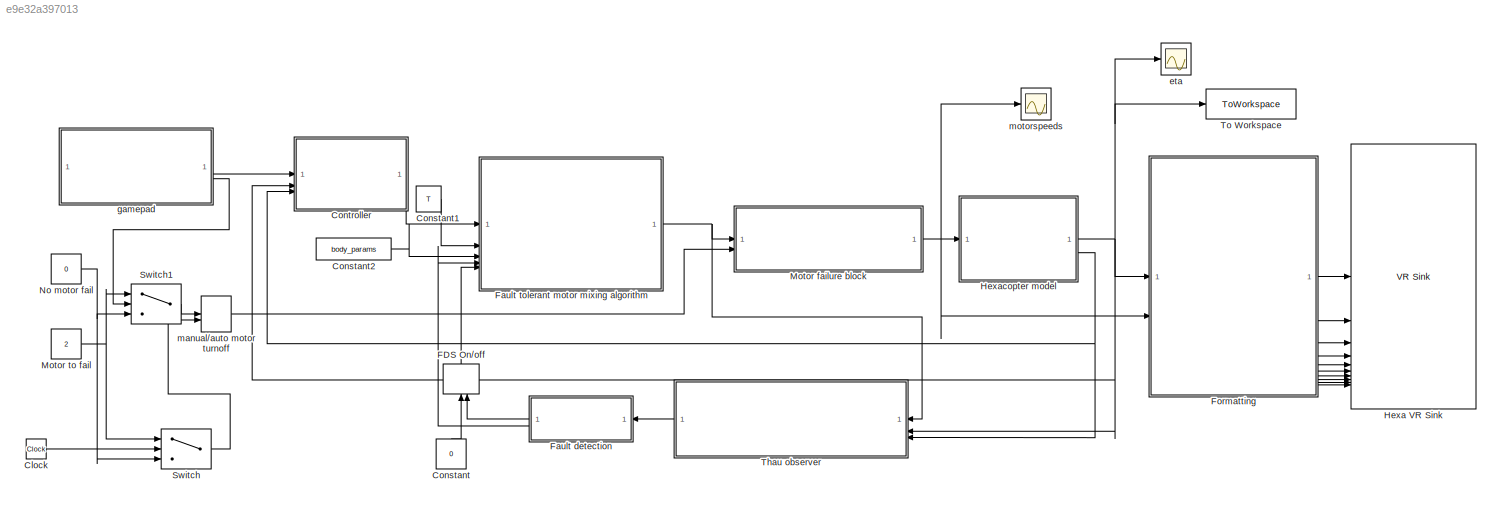
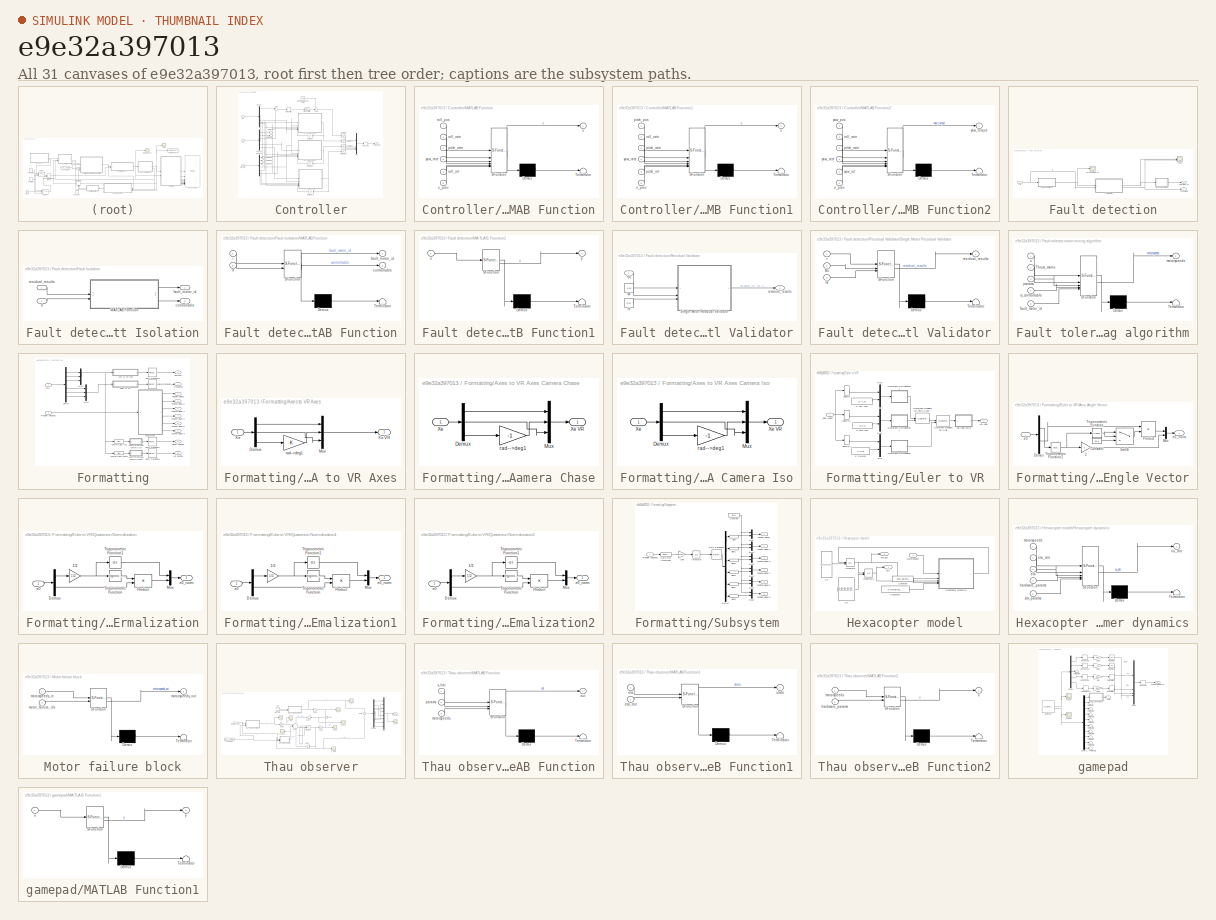
[diagram: thumbnail index - all 31 canvases of the model, root first then tree order]
MODEL slx_e9e32a397013
KIND model
CONFIG AbsTol = auto
CONFIG EnableMultiTasking = off
CONFIG FixedStep = 0.005
CONFIG MaxStep = auto
CONFIG MinStep = auto
CONFIG RelTol = 1e-3
CONFIG SampleTimeConstraint = Unconstrained
CONFIG SolverName = ode3
CONFIG StartTime = 0.0
CONFIG StopTime = inf
BLOCK [Clock] Clock
  Decimation = 1
BLOCK [Constant] Constant
  NameLocation = right
  Value = 0
BLOCK [Constant] Constant1
  Value = T
BLOCK [Constant] Constant2
  Value = body_params
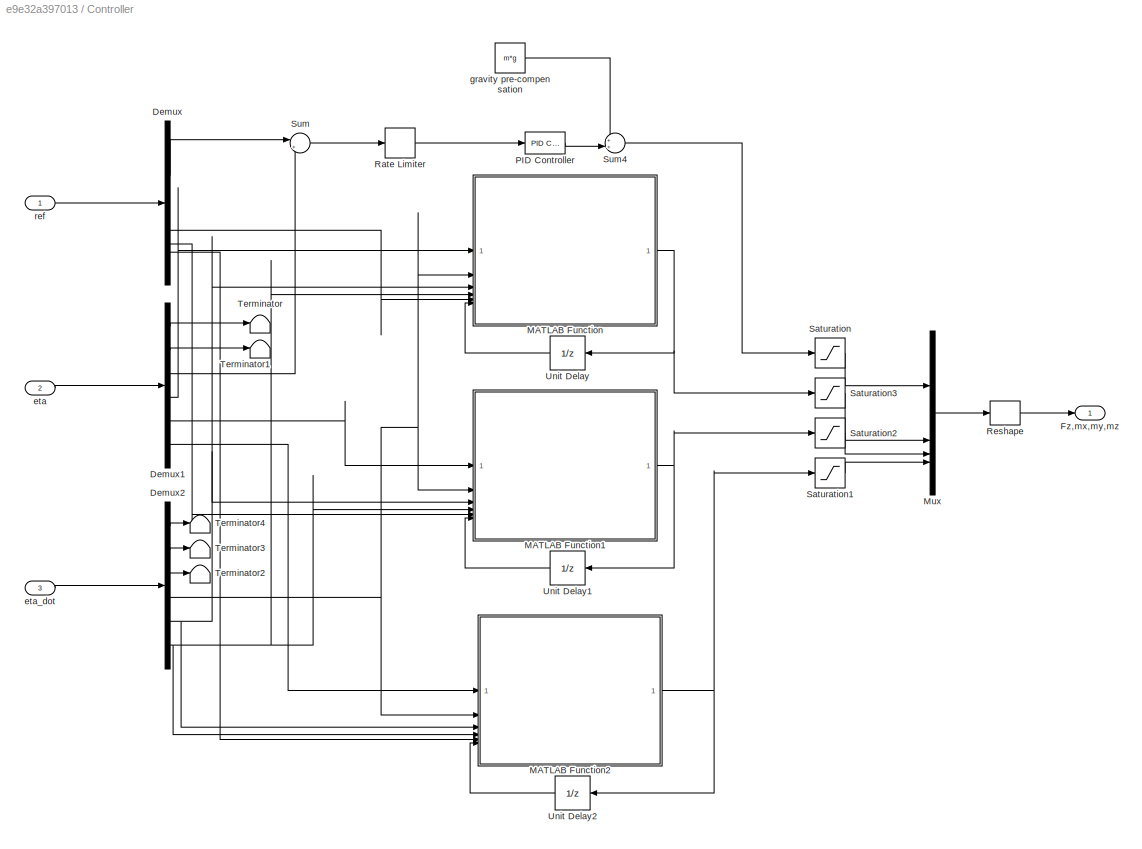
BLOCK [SubSystem] Controller
BLOCK [Demux] Controller/Demux
BLOCK [Demux] Controller/Demux1
  Outputs = 6
BLOCK [Demux] Controller/Demux2
  Outputs = 6
BLOCK [Outport] Controller/Fz,mx,my,mz
BLOCK [SubSystem] Controller/MATLAB Function
  ErrorFcn = Stateflow.Translate.translate
  PermitHierarchicalResolution = ExplicitOnly
  SFBlockType = MATLAB Function
  TreatAsAtomicUnit = on
BLOCK [Demux] Controller/MATLAB Function/ Demux 
  Outputs = 1
BLOCK [S-Function] Controller/MATLAB Function/ SFunction 
  EnableBusSupport = on
  FunctionName = sf_sfun
  PortCounts = [6 2]
  SFcnIsStateOwnerBlock = off
  SFunctionDeploymentMode = off
  Tag = Stateflow S-Function 7
BLOCK [Terminator] Controller/MATLAB Function/ Terminator 
BLOCK [Inport] Controller/MATLAB Function/pitch_rate
  Port = 3
BLOCK [Inport] Controller/MATLAB Function/roll_pos
BLOCK [Inport] Controller/MATLAB Function/roll_rate
  Port = 2
BLOCK [Inport] Controller/MATLAB Function/roll_ref
  Port = 5
BLOCK [Outport] Controller/MATLAB Function/u
BLOCK [Inport] Controller/MATLAB Function/u_prev
  Port = 6
BLOCK [Inport] Controller/MATLAB Function/yaw_rate
  Port = 4
BLOCK [SubSystem] Controller/MATLAB Function1
  ErrorFcn = Stateflow.Translate.translate
  PermitHierarchicalResolution = ExplicitOnly
  SFBlockType = MATLAB Function
  TreatAsAtomicUnit = on
BLOCK [Demux] Controller/MATLAB Function1/ Demux 
  Outputs = 1
BLOCK [S-Function] Controller/MATLAB Function1/ SFunction 
  EnableBusSupport = on
  FunctionName = sf_sfun
  PortCounts = [6 2]
  SFcnIsStateOwnerBlock = off
  SFunctionDeploymentMode = off
  Tag = Stateflow S-Function 10
BLOCK [Terminator] Controller/MATLAB Function1/ Terminator 
BLOCK [Inport] Controller/MATLAB Function1/pitch_pos
BLOCK [Inport] Controller/MATLAB Function1/pitch_rate
  Port = 3
BLOCK [Inport] Controller/MATLAB Function1/pitch_ref
  Port = 5
BLOCK [Inport] Controller/MATLAB Function1/roll_rate
  Port = 2
BLOCK [Outport] Controller/MATLAB Function1/u
BLOCK [Inport] Controller/MATLAB Function1/u_prev
  Port = 6
BLOCK [Inport] Controller/MATLAB Function1/yaw_rate
  Port = 4
BLOCK [SubSystem] Controller/MATLAB Function2
  ErrorFcn = Stateflow.Translate.translate
  PermitHierarchicalResolution = ExplicitOnly
  SFBlockType = MATLAB Function
  TreatAsAtomicUnit = on
BLOCK [Demux] Controller/MATLAB Function2/ Demux 
  Outputs = 1
BLOCK [S-Function] Controller/MATLAB Function2/ SFunction 
  EnableBusSupport = on
  FunctionName = sf_sfun
  PortCounts = [6 2]
  SFcnIsStateOwnerBlock = off
  SFunctionDeploymentMode = off
  Tag = Stateflow S-Function 12
BLOCK [Terminator] Controller/MATLAB Function2/ Terminator 
BLOCK [Inport] Controller/MATLAB Function2/pitch_rate
  Port = 3
BLOCK [Inport] Controller/MATLAB Function2/roll_rate
  Port = 2
BLOCK [Inport] Controller/MATLAB Function2/u_prev
  Port = 6
BLOCK [Inport] Controller/MATLAB Function2/yaw_pos
BLOCK [Inport] Controller/MATLAB Function2/yaw_rate
  Port = 4
BLOCK [Inport] Controller/MATLAB Function2/yaw_ref
  Port = 5
BLOCK [Outport] Controller/MATLAB Function2/yaw_torque
BLOCK [Mux] Controller/Mux
  DisplayOption = bar
BLOCK [Reference] Controller/PID Controller  REF=slpidlib/PID Controller
  LibrarySourceBlock = simulink/Continuous/PID Controller
  SourceBlock = slpidlib/PID Controller
  SourceType = PID 1dof
BLOCK [RateLimiter] Controller/Rate Limiter
  Commented = through
  FallingSlewLimit = -0.5
  RisingSlewLimit = 0.5
  SampleTimeMode = inherited
BLOCK [Reshape] Controller/Reshape
  OutputDimensionality = Column vector (2-D)
BLOCK [Saturate] Controller/Saturation
  LowerLimit = 0
  UpperLimit = 30
BLOCK [Saturate] Controller/Saturation1
  LowerLimit = -5
  UpperLimit = 5
BLOCK [Saturate] Controller/Saturation2
  LowerLimit = -0.2
  UpperLimit = 0.2
BLOCK [Saturate] Controller/Saturation3
  LowerLimit = -0.2
  UpperLimit = 0.2
BLOCK [Sum] Controller/Sum
  Inputs = |+-
BLOCK [Sum] Controller/Sum4
  Inputs = ++|
BLOCK [Terminator] Controller/Terminator
BLOCK [Terminator] Controller/Terminator1
BLOCK [Terminator] Controller/Terminator2
BLOCK [Terminator] Controller/Terminator3
BLOCK [Terminator] Controller/Terminator4
BLOCK [UnitDelay] Controller/Unit Delay
  HasFrameUpgradeWarning = on
  NameLocation = top
  SampleTime = -1
BLOCK [UnitDelay] Controller/Unit Delay1
  HasFrameUpgradeWarning = on
  NameLocation = top
  SampleTime = -1
BLOCK [UnitDelay] Controller/Unit Delay2
  HasFrameUpgradeWarning = on
  NameLocation = top
  SampleTime = -1
BLOCK [Inport] Controller/eta
  Port = 2
BLOCK [Inport] Controller/eta_dot
  Port = 3
BLOCK [Constant] Controller/gravity pre-compensation
  Value = m*g
BLOCK [Inport] Controller/ref
BLOCK [ManualSwitch] FDS On//off
  NameLocation = right
BLOCK [SubSystem] Fault detection
  NameLocation = top
BLOCK [SubSystem] Fault detection/Fault Isolation
BLOCK [SubSystem] Fault detection/Fault Isolation/MATLAB Function
  ErrorFcn = Stateflow.Translate.translate
  PermitHierarchicalResolution = ExplicitOnly
  SFBlockType = MATLAB Function
  TreatAsAtomicUnit = on
BLOCK [Demux] Fault detection/Fault Isolation/MATLAB Function/ Demux 
  Outputs = 1
BLOCK [S-Function] Fault detection/Fault Isolation/MATLAB Function/ SFunction 
  EnableBusSupport = on
  FunctionName = sf_sfun
  PortCounts = [2 3]
  SFcnIsStateOwnerBlock = off
  SFunctionDeploymentMode = off
  Tag = Stateflow S-Function 9
BLOCK [Terminator] Fault detection/Fault Isolation/MATLAB Function/ Terminator 
BLOCK [Outport] Fault detection/Fault Isolation/MATLAB Function/controllable
  Port = 2
BLOCK [Outport] Fault detection/Fault Isolation/MATLAB Function/fault_motor_id
BLOCK [Inport] Fault detection/Fault Isolation/MATLAB Function/r
BLOCK [Inport] Fault detection/Fault Isolation/MATLAB Function/rt
  Port = 2
BLOCK [Outport] Fault detection/Fault Isolation/controllable
  Port = 2
BLOCK [Outport] Fault detection/Fault Isolation/fault_motor_id
BLOCK [Inport] Fault detection/Fault Isolation/residual_results
BLOCK [Inport] Fault detection/Fault Isolation/rt
  Port = 2
BLOCK [Scope] Fault detection/Faults
  Floating = off
  NumInputPorts = 2
  ScopeSpecificationString = Simulink.scopes.TimeScopeBlockCfg('CurrentConfiguration', extmgr.ConfigurationSet(extmgr.Configuration('Core','General UI',true),extmgr.Configuration('Core','Source UI',true),extmgr.Configuration('Sources','WiredSimulink',true,'DataLoggingVariableName','ScopeData1'),extmgr.Configuration('Visuals','Time Domain',true,'SerializedDisplays',{struct('MinYLimReal','-1.25','MaxYLimReal','1.25','YLabelReal...<+1525ch>
BLOCK [SubSystem] Fault detection/MATLAB Function1
  ErrorFcn = Stateflow.Translate.translate
  PermitHierarchicalResolution = ExplicitOnly
  SFBlockType = MATLAB Function
  TreatAsAtomicUnit = on
BLOCK [Demux] Fault detection/MATLAB Function1/ Demux 
  Outputs = 1
BLOCK [S-Function] Fault detection/MATLAB Function1/ SFunction 
  EnableBusSupport = on
  FunctionName = sf_sfun
  PortCounts = [1 2]
  SFcnIsStateOwnerBlock = off
  SFunctionDeploymentMode = off
  Tag = Stateflow S-Function 13
BLOCK [Terminator] Fault detection/MATLAB Function1/ Terminator 
BLOCK [Inport] Fault detection/MATLAB Function1/u
BLOCK [Outport] Fault detection/MATLAB Function1/y
BLOCK [SubSystem] Fault detection/Residual Validator
BLOCK [Constant] Fault detection/Residual Validator/Hi
  Value = 0.03
BLOCK [Constant] Fault detection/Residual Validator/Mi
  Value = -0.03
BLOCK [SubSystem] Fault detection/Residual Validator/Single Motor Residual Validator
  ErrorFcn = Stateflow.Translate.translate
  PermitHierarchicalResolution = ExplicitOnly
  SFBlockType = MATLAB Function
  TreatAsAtomicUnit = on
BLOCK [Demux] Fault detection/Residual Validator/Single Motor Residual Validator/ Demux 
  Outputs = 1
BLOCK [S-Function] Fault detection/Residual Validator/Single Motor Residual Validator/ SFunction 
  EnableBusSupport = on
  FunctionName = sf_sfun
  PortCounts = [3 2]
  SFcnIsStateOwnerBlock = off
  SFunctionDeploymentMode = off
  Tag = Stateflow S-Function 11
BLOCK [Terminator] Fault detection/Residual Validator/Single Motor Residual Validator/ Terminator 
BLOCK [Inport] Fault detection/Residual Validator/Single Motor Residual Validator/Hi
  Port = 3
BLOCK [Inport] Fault detection/Residual Validator/Single Motor Residual Validator/Mi
  Port = 2
BLOCK [Inport] Fault detection/Residual Validator/Single Motor Residual Validator/r
BLOCK [Outport] Fault detection/Residual Validator/Single Motor Residual Validator/residual_results
BLOCK [Inport] Fault detection/Residual Validator/r(t)
BLOCK [Outport] Fault detection/Residual Validator/residual_results
BLOCK [Scope] Fault detection/Thresholded r(t)
  Floating = off
  NumInputPorts = 1
  ScopeSpecificationString = Simulink.scopes.TimeScopeBlockCfg('CurrentConfiguration', extmgr.ConfigurationSet(extmgr.Configuration('Core','General UI',true),extmgr.Configuration('Core','Source UI',true),extmgr.Configuration('Sources','WiredSimulink',true,'DataLoggingVariableName','ScopeData2'),extmgr.Configuration('Visuals','Time Domain',true,'SerializedDisplays',{struct('MinYLimReal','-1.25','MaxYLimReal','1.25','YLabelReal...<+1667ch>
BLOCK [Outport] Fault detection/controllable
  Port = 2
BLOCK [Outport] Fault detection/fault_motor_id
BLOCK [Inport] Fault detection/r(t)
BLOCK [SubSystem] Fault tolerant motor mixing algorithm
  ErrorFcn = Stateflow.Translate.translate
  PermitHierarchicalResolution = ExplicitOnly
  SFBlockType = MATLAB Function
  TreatAsAtomicUnit = on
BLOCK [Demux] Fault tolerant motor mixing algorithm/ Demux 
  Outputs = 1
BLOCK [S-Function] Fault tolerant motor mixing algorithm/ SFunction 
  EnableBusSupport = on
  FunctionName = sf_sfun
  PortCounts = [5 2]
  SFcnIsStateOwnerBlock = off
  SFunctionDeploymentMode = off
  Tag = Stateflow S-Function 6
BLOCK [Terminator] Fault tolerant motor mixing algorithm/ Terminator 
BLOCK [Inport] Fault tolerant motor mixing algorithm/Thrust_matrix
  Port = 2
BLOCK [Inport] Fault tolerant motor mixing algorithm/fault_motor_id
  Port = 5
BLOCK [Inport] Fault tolerant motor mixing algorithm/is_controllable
  Port = 4
BLOCK [Outport] Fault tolerant motor mixing algorithm/motorspeeds
BLOCK [Inport] Fault tolerant motor mixing algorithm/params
  Port = 3
BLOCK [Inport] Fault tolerant motor mixing algorithm/u
BLOCK [SubSystem] Formatting
BLOCK [SubSystem] Formatting/Axes to VR Axes
BLOCK [SubSystem] Formatting/Axes to VR Axes Camera Chase
BLOCK [Demux] Formatting/Axes to VR Axes Camera Chase/Demux
  DisplayOption = none
  Outputs = 3
BLOCK [Mux] Formatting/Axes to VR Axes Camera Chase/Mux
  DisplayOption = bar
  Inputs = 3
BLOCK [Inport] Formatting/Axes to VR Axes Camera Chase/Xe
BLOCK [Outport] Formatting/Axes to VR Axes Camera Chase/Xe VR
  VectorParamsAs1DForOutWhenUnconnected = off
BLOCK [Gain] Formatting/Axes to VR Axes Camera Chase/rad-->deg1
  Gain = -1
  NameLocation = top
  OutDataTypeStr = Inherit: Same as input
  ParamDataTypeStr = Inherit: Same as input
  SaturateOnIntegerOverflow = on
BLOCK [SubSystem] Formatting/Axes to VR Axes Camera Iso
BLOCK [Demux] Formatting/Axes to VR Axes Camera Iso/Demux
  DisplayOption = none
  Outputs = 3
BLOCK [Mux] Formatting/Axes to VR Axes Camera Iso/Mux
  DisplayOption = bar
  Inputs = 3
BLOCK [Inport] Formatting/Axes to VR Axes Camera Iso/Xe
BLOCK [Outport] Formatting/Axes to VR Axes Camera Iso/Xe VR
  VectorParamsAs1DForOutWhenUnconnected = off
BLOCK [Gain] Formatting/Axes to VR Axes Camera Iso/rad-->deg1
  Gain = -1
  NameLocation = top
  OutDataTypeStr = Inherit: Same as input
  ParamDataTypeStr = Inherit: Same as input
  SaturateOnIntegerOverflow = on
BLOCK [Demux] Formatting/Axes to VR Axes/Demux
  DisplayOption = none
  Outputs = 3
BLOCK [Mux] Formatting/Axes to VR Axes/Mux
  DisplayOption = bar
  Inputs = 3
BLOCK [Inport] Formatting/Axes to VR Axes/Xe
BLOCK [Outport] Formatting/Axes to VR Axes/Xe VR
  VectorParamsAs1DForOutWhenUnconnected = off
BLOCK [Gain] Formatting/Axes to VR Axes/rad-->deg1
  NameLocation = top
  OutDataTypeStr = Inherit: Same as input
  ParamDataTypeStr = Inherit: Same as input
  SaturateOnIntegerOverflow = on
BLOCK [Bias] Formatting/Camera bias Chase
  Bias = [-4 0 -.9558]'
  SaturateOnIntegerOverflow = off
BLOCK [Bias] Formatting/Camera bias Iso
  Bias = [0.9009 .99 -.6247]'
  SaturateOnIntegerOverflow = off
BLOCK [Demux] Formatting/Demux
  Outputs = 6
BLOCK [Inport] Formatting/Eta
BLOCK [SubSystem] Formatting/Euler to VR
BLOCK [Outport] Formatting/Euler to VR/Axis Angle
  VectorParamsAs1DForOutWhenUnconnected = off
BLOCK [SubSystem] Formatting/Euler to VR/Axis Angle Vector
BLOCK [Gain] Formatting/Euler to VR/Axis Angle Vector/2
  Gain = 2
  OutDataTypeStr = Inherit: Same as input
  ParamDataTypeStr = Inherit: Same as input
  SaturateOnIntegerOverflow = on
BLOCK [Constant] Formatting/Euler to VR/Axis Angle Vector/Constant
  Value = 1e-6
BLOCK [Demux] Formatting/Euler to VR/Axis Angle Vector/Demux
  DisplayOption = none
  Outputs = [1 3 ]
BLOCK [Mux] Formatting/Euler to VR/Axis Angle Vector/Mux
  DisplayOption = bar
  Inputs = 2
BLOCK [Product] Formatting/Euler to VR/Axis Angle Vector/Product
  InputSameDT = on
  Inputs = */
  OutDataTypeStr = Inherit: Same as first input
  SaturateOnIntegerOverflow = on
BLOCK [Switch] Formatting/Euler to VR/Axis Angle Vector/Switch
  Criteria = u2 ~= 0
  InputSameDT = off
  SaturateOnIntegerOverflow = off
BLOCK [Trigonometry] Formatting/Euler to VR/Axis Angle Vector/Trigonometric Function
BLOCK [Trigonometry] Formatting/Euler to VR/Axis Angle Vector/Trigonometric Function2
  Operator = acos
BLOCK [Inport] Formatting/Euler to VR/Axis Angle Vector/e0
BLOCK [Outport] Formatting/Euler to VR/Axis Angle Vector/e0_norm
  VectorParamsAs1DForOutWhenUnconnected = off
BLOCK [Inport] Formatting/Euler to VR/Euler Angles
BLOCK [Mux] Formatting/Euler to VR/Mux
  DisplayOption = bar
  Inputs = 2
BLOCK [Mux] Formatting/Euler to VR/Mux1
  DisplayOption = bar
  Inputs = 2
BLOCK [Mux] Formatting/Euler to VR/Mux2
  DisplayOption = bar
  Inputs = 2
BLOCK [Reference] Formatting/Euler to VR/Quaternion Multiplication (Pitch & Yaw)  REF=aerolibutil/Quaternion
Multiplication
  SourceBlock = aerolibutil/Quaternion\nMultiplication
  SourceType = Quaternion Multiplication
BLOCK [Reference] Formatting/Euler to VR/Quaternion Multiplication (Roll)  REF=aerolibutil/Quaternion
Multiplication
  SourceBlock = aerolibutil/Quaternion\nMultiplication
  SourceType = Quaternion Multiplication
BLOCK [SubSystem] Formatting/Euler to VR/Quaternion Normalization
BLOCK [Gain] Formatting/Euler to VR/Quaternion Normalization/1//2
  Gain = 1/2
  OutDataTypeStr = Inherit: Same as input
  ParamDataTypeStr = Inherit: Same as input
  SaturateOnIntegerOverflow = on
BLOCK [Demux] Formatting/Euler to VR/Quaternion Normalization/Demux
  DisplayOption = none
  Outputs = [1 3]
BLOCK [Mux] Formatting/Euler to VR/Quaternion Normalization/Mux
  DisplayOption = bar
  Inputs = 2
BLOCK [Product] Formatting/Euler to VR/Quaternion Normalization/Product
  InputSameDT = on
  OutDataTypeStr = Inherit: Same as first input
  SaturateOnIntegerOverflow = on
BLOCK [Trigonometry] Formatting/Euler to VR/Quaternion Normalization/Trigonometric Function
BLOCK [Trigonometry] Formatting/Euler to VR/Quaternion Normalization/Trigonometric Function1
  Operator = cos
BLOCK [Inport] Formatting/Euler to VR/Quaternion Normalization/e0
BLOCK [Outport] Formatting/Euler to VR/Quaternion Normalization/e0_norm
  VectorParamsAs1DForOutWhenUnconnected = off
BLOCK [SubSystem] Formatting/Euler to VR/Quaternion Normalization1
BLOCK [Gain] Formatting/Euler to VR/Quaternion Normalization1/1//2
  Gain = 1/2
  OutDataTypeStr = Inherit: Same as input
  ParamDataTypeStr = Inherit: Same as input
  SaturateOnIntegerOverflow = on
BLOCK [Demux] Formatting/Euler to VR/Quaternion Normalization1/Demux
  DisplayOption = none
  Outputs = [1 3]
BLOCK [Mux] Formatting/Euler to VR/Quaternion Normalization1/Mux
  DisplayOption = bar
  Inputs = 2
BLOCK [Product] Formatting/Euler to VR/Quaternion Normalization1/Product
  InputSameDT = on
  OutDataTypeStr = Inherit: Same as first input
  SaturateOnIntegerOverflow = on
BLOCK [Trigonometry] Formatting/Euler to VR/Quaternion Normalization1/Trigonometric Function
BLOCK [Trigonometry] Formatting/Euler to VR/Quaternion Normalization1/Trigonometric Function1
  Operator = cos
BLOCK [Inport] Formatting/Euler to VR/Quaternion Normalization1/e0
BLOCK [Outport] Formatting/Euler to VR/Quaternion Normalization1/e0_norm
  VectorParamsAs1DForOutWhenUnconnected = off
BLOCK [SubSystem] Formatting/Euler to VR/Quaternion Normalization2
BLOCK [Gain] Formatting/Euler to VR/Quaternion Normalization2/1//2
  Gain = 1/2
  OutDataTypeStr = Inherit: Same as input
  ParamDataTypeStr = Inherit: Same as input
  SaturateOnIntegerOverflow = on
BLOCK [Demux] Formatting/Euler to VR/Quaternion Normalization2/Demux
  DisplayOption = none
  Outputs = [1 3]
BLOCK [Mux] Formatting/Euler to VR/Quaternion Normalization2/Mux
  DisplayOption = bar
  Inputs = 2
BLOCK [Product] Formatting/Euler to VR/Quaternion Normalization2/Product
  InputSameDT = on
  OutDataTypeStr = Inherit: Same as first input
  SaturateOnIntegerOverflow = on
BLOCK [Trigonometry] Formatting/Euler to VR/Quaternion Normalization2/Trigonometric Function
BLOCK [Trigonometry] Formatting/Euler to VR/Quaternion Normalization2/Trigonometric Function1
  Operator = cos
BLOCK [Inport] Formatting/Euler to VR/Quaternion Normalization2/e0
BLOCK [Outport] Formatting/Euler to VR/Quaternion Normalization2/e0_norm
  VectorParamsAs1DForOutWhenUnconnected = off
BLOCK [Selector] Formatting/Euler to VR/Selector
  IndexOptions = Index vector (dialog)
  Indices = [3]
  InputPortWidth = 3
  OutputSizes = 1
BLOCK [Selector] Formatting/Euler to VR/Selector1
  IndexOptions = Index vector (dialog)
  Indices = [2]
  InputPortWidth = 3
  OutputSizes = 1
BLOCK [Selector] Formatting/Euler to VR/Selector2
  IndexOptions = Index vector (dialog)
  Indices = [1]
  InputPortWidth = 3
  OutputSizes = 1
BLOCK [Constant] Formatting/Euler to VR/Vr Pitch Axes
  NameLocation = top
  Value = [0 0 1]
BLOCK [Constant] Formatting/Euler to VR/Vr Roll Axes
  NameLocation = top
  Value = [1 0 0]
BLOCK [Constant] Formatting/Euler to VR/Vr Yaw Axes
  Value = [0 -1 0]
BLOCK [Outport] Formatting/Iso Position
  Port = 10
BLOCK [Mux] Formatting/Mux1
  DisplayOption = bar
  Inputs = 3
BLOCK [Mux] Formatting/Mux3
  DisplayOption = bar
  Inputs = 3
BLOCK [Outport] Formatting/NoRot Position
  Port = 9
BLOCK [Outport] Formatting/Position Blade 2
  Port = 6
BLOCK [Outport] Formatting/Position Blade 3
  Port = 7
BLOCK [Outport] Formatting/Position Blade 4
  Port = 4
BLOCK [Outport] Formatting/Position Blade 5
  Port = 8
BLOCK [Outport] Formatting/Position Blade 6
  Port = 5
BLOCK [Outport] Formatting/Position Blade1
  Port = 3
BLOCK [Inport] Formatting/Propeller velocities
  Port = 2
BLOCK [RateTransition] Formatting/Rate Transition
BLOCK [RateTransition] Formatting/Rate Transition1
BLOCK [RateTransition] Formatting/Rate Transition2
BLOCK [RateTransition] Formatting/Rate Transition3
BLOCK [Outport] Formatting/Rotation
  Port = 2
BLOCK [SubSystem] Formatting/Subsystem
BLOCK [Bias] Formatting/Subsystem/Bias
  Bias = .1
  SaturateOnIntegerOverflow = off
BLOCK [Bias] Formatting/Subsystem/Bias1
  Bias = -.3
  SaturateOnIntegerOverflow = off
BLOCK [Bias] Formatting/Subsystem/Bias2
  Bias = .5
  SaturateOnIntegerOverflow = off
BLOCK [Bias] Formatting/Subsystem/Bias3
  Bias = -.7
  SaturateOnIntegerOverflow = off
BLOCK [Bias] Formatting/Subsystem/Bias4
  Bias = .9
  SaturateOnIntegerOverflow = off
BLOCK [Bias] Formatting/Subsystem/Bias5
  Bias = -.11
  SaturateOnIntegerOverflow = off
BLOCK [Constant] Formatting/Subsystem/Constant
  Value = [0 1 0]
BLOCK [DataTypeConversion] Formatting/Subsystem/Data Type Conversion
  OutDataTypeStr = double
  RndMeth = Floor
  SaturateOnIntegerOverflow = off
BLOCK [Demux] Formatting/Subsystem/Demux
  Outputs = 6
BLOCK [Gain] Formatting/Subsystem/Gain
  Gain = 0.0138408
BLOCK [Integrator] Formatting/Subsystem/Integrator
  InitialCondition = [.1 ; .2 ;-.3 ;-.4;-.5;-.6]
  WrapState = on
  WrappedStateLowerValue = -2*pi
  WrappedStateUpperValue = 2*pi
BLOCK [Mux] Formatting/Subsystem/Mux
  DisplayOption = bar
  Inputs = 2
BLOCK [Mux] Formatting/Subsystem/Mux1
  DisplayOption = bar
  Inputs = 2
BLOCK [Mux] Formatting/Subsystem/Mux2
  DisplayOption = bar
  Inputs = 2
BLOCK [Mux] Formatting/Subsystem/Mux3
  DisplayOption = bar
  Inputs = 2
BLOCK [Mux] Formatting/Subsystem/Mux4
  DisplayOption = bar
  Inputs = 2
BLOCK [Mux] Formatting/Subsystem/Mux5
  DisplayOption = bar
  Inputs = 2
BLOCK [Outport] Formatting/Subsystem/Position Blade 2
  Port = 2
  VectorParamsAs1DForOutWhenUnconnected = off
BLOCK [Outport] Formatting/Subsystem/Position Blade 3
  Port = 3
  VectorParamsAs1DForOutWhenUnconnected = off
BLOCK [Outport] Formatting/Subsystem/Position Blade 4
  Port = 4
  VectorParamsAs1DForOutWhenUnconnected = off
BLOCK [Outport] Formatting/Subsystem/Position Blade 5
  Port = 5
  VectorParamsAs1DForOutWhenUnconnected = off
BLOCK [Outport] Formatting/Subsystem/Position Blade 6
  Port = 6
  VectorParamsAs1DForOutWhenUnconnected = off
BLOCK [Outport] Formatting/Subsystem/Position Blade1
  VectorParamsAs1DForOutWhenUnconnected = off
BLOCK [Inport] Formatting/Subsystem/Propeller velocities
BLOCK [RateTransition] Formatting/Subsystem/Rate Transition2
BLOCK [Outport] Formatting/Translation
BLOCK [Reference] Hexa VR Sink  REF=vrlib/VR Sink
  InstantiateOnLoad = on
  SourceBlock = vrlib/VR Sink
  SourceType = Virtual Reality Sink
BLOCK [SubSystem] Hexacopter model
BLOCK [Constant] Hexacopter model/Constant
  Value = body_params
BLOCK [Constant] Hexacopter model/Constant1
  Value = Simulation_params
BLOCK [SubSystem] Hexacopter model/Hexacopter dynamics
  ErrorFcn = Stateflow.Translate.translate
  PermitHierarchicalResolution = ExplicitOnly
  SFBlockType = MATLAB Function
  TreatAsAtomicUnit = on
BLOCK [Demux] Hexacopter model/Hexacopter dynamics/ Demux 
  Outputs = 1
BLOCK [S-Function] Hexacopter model/Hexacopter dynamics/ SFunction 
  EnableBusSupport = on
  FunctionName = sf_sfun
  PortCounts = [5 2]
  SFcnIsStateOwnerBlock = off
  SFunctionDeploymentMode = off
  Tag = Stateflow S-Function 3
BLOCK [Terminator] Hexacopter model/Hexacopter dynamics/ Terminator 
BLOCK [Inport] Hexacopter model/Hexacopter dynamics/eta
  Port = 3
BLOCK [Inport] Hexacopter model/Hexacopter dynamics/eta_dot
  Port = 2
BLOCK [Inport] Hexacopter model/Hexacopter dynamics/hardware_params
  Port = 4
BLOCK [Inport] Hexacopter model/Hexacopter dynamics/motorspeeds
BLOCK [Outport] Hexacopter model/Hexacopter dynamics/nu_dot
BLOCK [Inport] Hexacopter model/Hexacopter dynamics/sim_params
  Port = 5
BLOCK [Integrator] Hexacopter model/Integrator
  InitialConditionSource = external
BLOCK [Integrator] Hexacopter model/Integrator1
  InitialConditionSource = external
BLOCK [Outport] Hexacopter model/eta
BLOCK [Outport] Hexacopter model/eta_dot
  Port = 2
BLOCK [Inport] Hexacopter model/motorspeeds
BLOCK [Constant] Hexacopter model/v_0
  Value = [0;0;0;0;0;0]
  VectorParams1D = off
BLOCK [Constant] Hexacopter model/x_0
  Value = [0;0;0;0;0;0]
  VectorParams1D = off
BLOCK [SubSystem] Motor failure block
  ErrorFcn = Stateflow.Translate.translate
  PermitHierarchicalResolution = ExplicitOnly
  SFBlockType = MATLAB Function
  TreatAsAtomicUnit = on
BLOCK [Demux] Motor failure block/ Demux 
  Outputs = 1
BLOCK [S-Function] Motor failure block/ SFunction 
  EnableBusSupport = on
  FunctionName = sf_sfun
  PortCounts = [2 2]
  SFcnIsStateOwnerBlock = off
  SFunctionDeploymentMode = off
  Tag = Stateflow S-Function 8
BLOCK [Terminator] Motor failure block/ Terminator 
BLOCK [Inport] Motor failure block/motor_failure_idx
  Port = 2
BLOCK [Inport] Motor failure block/motorspeeds_in
BLOCK [Outport] Motor failure block/motorspeeds_out
BLOCK [Constant] Motor to fail
  Value = 2
BLOCK [Constant] No motor fail
  Value = 0
BLOCK [Switch] Switch
  Criteria = u2 > Threshold
  InputSameDT = off
  SaturateOnIntegerOverflow = off
  Threshold = 10
BLOCK [Switch] Switch1
  InputSameDT = off
  SaturateOnIntegerOverflow = off
  Threshold = 1
BLOCK [SubSystem] Thau observer
  NameLocation = top
BLOCK [Scope] Thau observer/Bu
  Floating = off
  NumInputPorts = 1
  ScopeSpecificationString = Simulink.scopes.TimeScopeBlockCfg('CurrentConfiguration', extmgr.ConfigurationSet(extmgr.Configuration('Core','General UI',true),extmgr.Configuration('Core','Source UI',true),extmgr.Configuration('Sources','WiredSimulink',true,'DataLoggingVariableName','ScopeData2'),extmgr.Configuration('Visuals','Time Domain',true,'SerializedDisplays',{struct('MinYLimReal','-40.13004','MaxYLimReal','16.01252','YL...<+1685ch>
BLOCK [Constant] Thau observer/Constant1
  Value = body_params
BLOCK [Demux] Thau observer/Demux
  Outputs = 8
BLOCK [Gain] Thau observer/Gain
  Gain = C
  Multiplication = Matrix(K*u)
BLOCK [Gain] Thau observer/Gain1
  Gain = A
  Multiplication = Matrix(K*u)
  NameLocation = top
BLOCK [Gain] Thau observer/Gain2
  Gain = B
  Multiplication = Matrix(K*u)
BLOCK [Gain] Thau observer/Gain3
  Gain = K
  Multiplication = Matrix(K*u)
  NameLocation = top
BLOCK [Gain] Thau observer/Gain4
  Gain = C
  Multiplication = Matrix(K*u)
BLOCK [Integrator] Thau observer/Integrator
  InitialConditionSource = external
BLOCK [SubSystem] Thau observer/MATLAB Function
  ErrorFcn = Stateflow.Translate.translate
  PermitHierarchicalResolution = ExplicitOnly
  SFBlockType = MATLAB Function
  TreatAsAtomicUnit = on
BLOCK [Demux] Thau observer/MATLAB Function/ Demux 
  Outputs = 1
BLOCK [S-Function] Thau observer/MATLAB Function/ SFunction 
  EnableBusSupport = on
  FunctionName = sf_sfun
  PortCounts = [3 2]
  SFcnIsStateOwnerBlock = off
  SFunctionDeploymentMode = off
  Tag = Stateflow S-Function 5
BLOCK [Terminator] Thau observer/MATLAB Function/ Terminator 
BLOCK [Inport] Thau observer/MATLAB Function/motorspeeds
  Port = 3
BLOCK [Outport] Thau observer/MATLAB Function/out
BLOCK [Inport] Thau observer/MATLAB Function/params
  Port = 2
BLOCK [Inport] Thau observer/MATLAB Function/x_hat
BLOCK [SubSystem] Thau observer/MATLAB Function1
  ErrorFcn = Stateflow.Translate.translate
  PermitHierarchicalResolution = ExplicitOnly
  SFBlockType = MATLAB Function
  TreatAsAtomicUnit = on
BLOCK [Demux] Thau observer/MATLAB Function1/ Demux 
  Outputs = 1
BLOCK [S-Function] Thau observer/MATLAB Function1/ SFunction 
  EnableBusSupport = on
  FunctionName = sf_sfun
  PortCounts = [2 2]
  SFcnIsStateOwnerBlock = off
  SFunctionDeploymentMode = off
  Tag = Stateflow S-Function 1
BLOCK [Terminator] Thau observer/MATLAB Function1/ Terminator 
BLOCK [Inport] Thau observer/MATLAB Function1/eta
BLOCK [Inport] Thau observer/MATLAB Function1/eta_dot
  Port = 2
BLOCK [Outport] Thau observer/MATLAB Function1/state
BLOCK [SubSystem] Thau observer/MATLAB Function2
  ErrorFcn = Stateflow.Translate.translate
  PermitHierarchicalResolution = ExplicitOnly
  SFBlockType = MATLAB Function
  TreatAsAtomicUnit = on
BLOCK [Demux] Thau observer/MATLAB Function2/ Demux 
  Outputs = 1
BLOCK [S-Function] Thau observer/MATLAB Function2/ SFunction 
  EnableBusSupport = on
  FunctionName = sf_sfun
  PortCounts = [2 2]
  SFcnIsStateOwnerBlock = off
  SFunctionDeploymentMode = off
  Tag = Stateflow S-Function 4
BLOCK [Terminator] Thau observer/MATLAB Function2/ Terminator 
BLOCK [Inport] Thau observer/MATLAB Function2/hardware_params
  Port = 2
BLOCK [Inport] Thau observer/MATLAB Function2/motorspeeds
BLOCK [Outport] Thau observer/MATLAB Function2/u
BLOCK [Mux] Thau observer/Mux
  DisplayOption = bar
  Inputs = 8
BLOCK [Scope] Thau observer/Scope
  Floating = off
  NumInputPorts = 1
  ScopeSpecificationString = Simulink.scopes.TimeScopeBlockCfg('CurrentConfiguration', extmgr.ConfigurationSet(extmgr.Configuration('Core','General UI',true),extmgr.Configuration('Core','Source UI',true),extmgr.Configuration('Sources','WiredSimulink',true,'DataLoggingVariableName','ScopeData3'),extmgr.Configuration('Visuals','Time Domain',true,'SerializedDisplays',{struct('MinYLimReal','-0.00131','MaxYLimReal','0.00618','YLab...<+1506ch>
BLOCK [Scope] Thau observer/Scope2
  Floating = off
  NameLocation = top
  NumInputPorts = 1
  ScopeSpecificationString = Simulink.scopes.TimeScopeBlockCfg('CurrentConfiguration', extmgr.ConfigurationSet(extmgr.Configuration('Core','General UI',true),extmgr.Configuration('Core','Source UI',true),extmgr.Configuration('Sources','WiredSimulink',true,'DataLoggingVariableName','ScopeData1'),extmgr.Configuration('Visuals','Time Domain',true,'SerializedDisplays',{struct('MinYLimReal','-11.08749','MaxYLimReal','1.58739','YLa...<+1730ch>
BLOCK [Sum] Thau observer/Sum
  Inputs = +|-
  NameLocation = top
BLOCK [Sum] Thau observer/Sum1
  Inputs = +|+|+|+
BLOCK [Sum] Thau observer/Sum2
  Inputs = +|-
BLOCK [Inport] Thau observer/eta
  NameLocation = top
  Port = 2
BLOCK [Inport] Thau observer/eta_dot
  Port = 3
BLOCK [Inport] Thau observer/motorspeeds
BLOCK [Outport] Thau observer/residuals
BLOCK [Scope] Thau observer/rt
  Floating = off
  NumInputPorts = 1
  ScopeSpecificationString = Simulink.scopes.TimeScopeBlockCfg('CurrentConfiguration', extmgr.ConfigurationSet(extmgr.Configuration('Core','General UI',true),extmgr.Configuration('Core','Source UI',true),extmgr.Configuration('Sources','WiredSimulink',true,'DataLoggingVariableName','ScopeData2'),extmgr.Configuration('Visuals','Time Domain',true,'SerializedDisplays',{struct('MinYLimReal','-3033.32076','MaxYLimReal','469.27391',...<+1490ch>
BLOCK [Scope] Thau observer/u
  Floating = off
  NumInputPorts = 1
  ScopeSpecificationString = Simulink.scopes.TimeScopeBlockCfg('CurrentConfiguration', extmgr.ConfigurationSet(extmgr.Configuration('Core','General UI',true),extmgr.Configuration('Core','Source UI',true),extmgr.Configuration('Sources','WiredSimulink',true,'DataLoggingVariableName','ScopeData1'),extmgr.Configuration('Visuals','Time Domain',true,'SerializedDisplays',{struct('MinYLimReal','-3.24946','MaxYLimReal','29.24513','YLa...<+1546ch>
BLOCK [Scope] Thau observer/x
  Floating = off
  NumInputPorts = 1
  ScopeSpecificationString = Simulink.scopes.TimeScopeBlockCfg('CurrentConfiguration', extmgr.ConfigurationSet(extmgr.Configuration('Core','General UI',true),extmgr.Configuration('Core','Source UI',true),extmgr.Configuration('Sources','WiredSimulink',true,'DataLoggingVariableName','ScopeData2'),extmgr.Configuration('Visuals','Time Domain',true,'SerializedDisplays',{struct('MinYLimReal','-2.20375','MaxYLimReal','11.68958','YLa...<+1642ch>
BLOCK [Constant] Thau observer/x_0
  Value = [0;0;0;0;0;0;0;0]
  VectorParams1D = off
BLOCK [Scope] Thau observer/x_hat
  Floating = off
  NumInputPorts = 1
  ScopeSpecificationString = Simulink.scopes.TimeScopeBlockCfg('CurrentConfiguration', extmgr.ConfigurationSet(extmgr.Configuration('Core','General UI',true),extmgr.Configuration('Core','Source UI',true),extmgr.Configuration('Sources','WiredSimulink',true,'DataLoggingVariableName','ScopeData1'),extmgr.Configuration('Visuals','Time Domain',true,'SerializedDisplays',{struct('MinYLimReal','-2.18057','MaxYLimReal','11.47559','YLa...<+1676ch>
BLOCK [Scope] Thau observer/y
  Floating = off
  NumInputPorts = 1
  ScopeSpecificationString = Simulink.scopes.TimeScopeBlockCfg('CurrentConfiguration', extmgr.ConfigurationSet(extmgr.Configuration('Core','General UI',true),extmgr.Configuration('Core','Source UI',true),extmgr.Configuration('Sources','WiredSimulink',true,'DataLoggingVariableName','ScopeData3'),extmgr.Configuration('Visuals','Time Domain',true,'SerializedDisplays',{struct('MinYLimReal','-0.00000000000000016','MaxYLimReal','0....<+1510ch>
BLOCK [Scope] Thau observer/y_hat
  Floating = off
  NumInputPorts = 1
  ScopeSpecificationString = Simulink.scopes.TimeScopeBlockCfg('CurrentConfiguration', extmgr.ConfigurationSet(extmgr.Configuration('Core','General UI',true),extmgr.Configuration('Core','Source UI',true),extmgr.Configuration('Sources','WiredSimulink',true,'DataLoggingVariableName','ScopeData4'),extmgr.Configuration('Visuals','Time Domain',true,'SerializedDisplays',{struct('MinYLimReal','-0.00618','MaxYLimReal','0.00131','YLab...<+1432ch>
BLOCK [ToWorkspace] To Workspace
  FixptAsFi = on
  MaxDataPoints = inf
  SampleTime = -1
  SaveFormat = Timeseries
  VariableName = simout
BLOCK [Scope] eta
  Floating = off
  NumInputPorts = 1
  ScopeSpecificationString = Simulink.scopes.TimeScopeBlockCfg('CurrentConfiguration', extmgr.ConfigurationSet(extmgr.Configuration('Core','General UI',true),extmgr.Configuration('Core','Source UI',true),extmgr.Configuration('Sources','WiredSimulink',true,'DataLoggingVariableName','ScopeData1'),extmgr.Configuration('Visuals','Time Domain',true,'SerializedDisplays',{struct('MinYLimReal','-2.61047','MaxYLimReal','23.49123','YLa...<+1695ch>
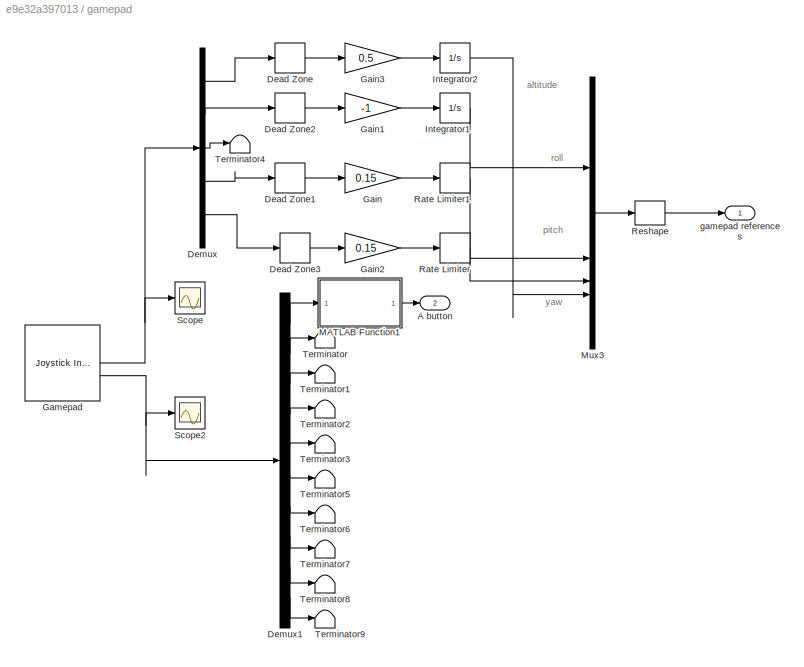
BLOCK [SubSystem] gamepad
BLOCK [Outport] gamepad/A button
  Port = 2
BLOCK [DeadZone] gamepad/Dead Zone
  LowerValue = -0.2
  UpperValue = 0.2
BLOCK [DeadZone] gamepad/Dead Zone1
  LowerValue = -0.2
  UpperValue = 0.2
BLOCK [DeadZone] gamepad/Dead Zone2
  LowerValue = -0.2
  UpperValue = 0.2
BLOCK [DeadZone] gamepad/Dead Zone3
  LowerValue = -0.2
  UpperValue = 0.2
BLOCK [Demux] gamepad/Demux
  Outputs = 5
BLOCK [Demux] gamepad/Demux1
  Outputs = 10
BLOCK [Gain] gamepad/Gain
  Gain = 0.15
BLOCK [Gain] gamepad/Gain1
  Gain = -1
BLOCK [Gain] gamepad/Gain2
  Gain = 0.15
BLOCK [Gain] gamepad/Gain3
  Gain = 0.5
BLOCK [Reference] gamepad/Gamepad  REF=vrlib/Joystick Input
  SourceBlock = vrlib/Joystick Input
  SourceType = Joystick Input
BLOCK [Integrator] gamepad/Integrator1
BLOCK [Integrator] gamepad/Integrator2
BLOCK [SubSystem] gamepad/MATLAB Function1
  ErrorFcn = Stateflow.Translate.translate
  PermitHierarchicalResolution = ExplicitOnly
  SFBlockType = MATLAB Function
  TreatAsAtomicUnit = on
BLOCK [Demux] gamepad/MATLAB Function1/ Demux 
  Outputs = 1
BLOCK [S-Function] gamepad/MATLAB Function1/ SFunction 
  EnableBusSupport = on
  FunctionName = sf_sfun
  PortCounts = [1 2]
  SFcnIsStateOwnerBlock = off
  SFunctionDeploymentMode = off
  Tag = Stateflow S-Function 2
BLOCK [Terminator] gamepad/MATLAB Function1/ Terminator 
BLOCK [Inport] gamepad/MATLAB Function1/u
BLOCK [Outport] gamepad/MATLAB Function1/y
BLOCK [Mux] gamepad/Mux3
  DisplayOption = bar
BLOCK [RateLimiter] gamepad/Rate Limiter
  FallingSlewLimit = -0.2
  RisingSlewLimit = 0.2
  SampleTimeMode = inherited
BLOCK [RateLimiter] gamepad/Rate Limiter1
  FallingSlewLimit = -0.2
  RisingSlewLimit = 0.2
  SampleTimeMode = inherited
BLOCK [Reshape] gamepad/Reshape
  OutputDimensionality = Column vector (2-D)
BLOCK [Scope] gamepad/Scope
  Floating = off
  NumInputPorts = 1
  ScopeSpecificationString = Simulink.scopes.TimeScopeBlockCfg('CurrentConfiguration', extmgr.ConfigurationSet(extmgr.Configuration('Core','General UI',true),extmgr.Configuration('Core','Source UI',true),extmgr.Configuration('Sources','WiredSimulink',true,'DataLoggingVariableName','ScopeData1'),extmgr.Configuration('Visuals','Time Domain',true,'SerializedDisplays',{struct('MinYLimReal','-1.25','MaxYLimReal','1.25','YLabelReal...<+1435ch>
BLOCK [Scope] gamepad/Scope2
  Floating = off
  NumInputPorts = 1
  ScopeSpecificationString = Simulink.scopes.TimeScopeBlockCfg('CurrentConfiguration', extmgr.ConfigurationSet(extmgr.Configuration('Core','General UI',true),extmgr.Configuration('Core','Source UI',true),extmgr.Configuration('Sources','WiredSimulink',true,'DataLoggingVariableName','ScopeData1'),extmgr.Configuration('Visuals','Time Domain',true,'SerializedDisplays',{struct('MinYLimReal','-1.00000','MaxYLimReal','1.00000','YLab...<+1496ch>
BLOCK [Terminator] gamepad/Terminator
BLOCK [Terminator] gamepad/Terminator1
BLOCK [Terminator] gamepad/Terminator2
BLOCK [Terminator] gamepad/Terminator3
BLOCK [Terminator] gamepad/Terminator4
BLOCK [Terminator] gamepad/Terminator5
BLOCK [Terminator] gamepad/Terminator6
BLOCK [Terminator] gamepad/Terminator7
BLOCK [Terminator] gamepad/Terminator8
BLOCK [Terminator] gamepad/Terminator9
BLOCK [Outport] gamepad/gamepad references
BLOCK [ManualSwitch] manual//auto motor turnoff
BLOCK [Scope] motorspeeds
  Floating = off
  NumInputPorts = 1
  ScopeSpecificationString = Simulink.scopes.TimeScopeBlockCfg('CurrentConfiguration', extmgr.ConfigurationSet(extmgr.Configuration('Core','General UI',true),extmgr.Configuration('Core','Source UI',true),extmgr.Configuration('Sources','WiredSimulink',true,'DataLoggingVariableName','ScopeData1'),extmgr.Configuration('Visuals','Time Domain',true,'SerializedDisplays',{struct('MinYLimReal','-103.64394','MaxYLimReal','932.7955','Y...<+1591ch>
ANNOTATION gamepad: altitude
ANNOTATION gamepad: pitch
ANNOTATION gamepad: roll
ANNOTATION gamepad: yaw
LINE Clock:1 -> Switch:2
LINE Constant1:1 -> Fault tolerant motor mixing algorithm:2
LINE Constant2:1 -> Fault tolerant motor mixing algorithm:3
LINE Constant:1 -> FDS On//off:1
LINE Controller/Demux1:1 -> Controller/Terminator:1
LINE Controller/Demux1:2 -> Controller/Terminator1:1
LINE Controller/Demux1:3 -> Controller/Sum:2
LINE Controller/Demux1:4 -> Controller/MATLAB Function:1
LINE Controller/Demux1:5 -> Controller/MATLAB Function1:1
LINE Controller/Demux1:6 -> Controller/MATLAB Function2:1
LINE Controller/Demux2:1 -> Controller/Terminator4:1
LINE Controller/Demux2:2 -> Controller/Terminator3:1
LINE Controller/Demux2:3 -> Controller/Terminator2:1
NET Controller/Demux2:4 -> Controller/MATLAB Function1:2, Controller/MATLAB Function2:2, Controller/MATLAB Function:2
NET Controller/Demux2:5 -> Controller/MATLAB Function1:3, Controller/MATLAB Function2:3, Controller/MATLAB Function:3
NET Controller/Demux2:6 -> Controller/MATLAB Function1:4, Controller/MATLAB Function2:4, Controller/MATLAB Function:4
LINE Controller/Demux:1 -> Controller/Sum:1
LINE Controller/Demux:2 -> Controller/MATLAB Function:5
LINE Controller/Demux:3 -> Controller/MATLAB Function1:5
LINE Controller/Demux:4 -> Controller/MATLAB Function2:5
NET Controller/MATLAB Function1:1 -> Controller/Saturation2:1, Controller/Unit Delay1:1
NET Controller/MATLAB Function2:1 -> Controller/Saturation1:1, Controller/Unit Delay2:1
NET Controller/MATLAB Function:1 -> Controller/Saturation3:1, Controller/Unit Delay:1
LINE Controller/Mux:1 -> Controller/Reshape:1
LINE Controller/PID Controller:1 -> Controller/Sum4:2
LINE Controller/Rate Limiter:1 -> Controller/PID Controller:1
LINE Controller/Reshape:1 -> Controller/Fz,mx,my,mz:1
LINE Controller/Saturation1:1 -> Controller/Mux:4
LINE Controller/Saturation2:1 -> Controller/Mux:3
LINE Controller/Saturation3:1 -> Controller/Mux:2
LINE Controller/Saturation:1 -> Controller/Mux:1
LINE Controller/Sum4:1 -> Controller/Saturation:1
LINE Controller/Sum:1 -> Controller/Rate Limiter:1
LINE Controller/Unit Delay1:1 -> Controller/MATLAB Function1:6
LINE Controller/Unit Delay2:1 -> Controller/MATLAB Function2:6
LINE Controller/Unit Delay:1 -> Controller/MATLAB Function:6
LINE Controller/eta:1 -> Controller/Demux1:1
LINE Controller/eta_dot:1 -> Controller/Demux2:1
LINE Controller/gravity pre-compensation:1 -> Controller/Sum4:1
LINE Controller/ref:1 -> Controller/Demux:1
LINE Controller:1 -> Fault tolerant motor mixing algorithm:1
LINE FDS On//off:1 -> Fault tolerant motor mixing algorithm:5
LINE Fault detection/Fault Isolation/MATLAB Function:1 -> Fault detection/Fault Isolation/fault_motor_id:1
LINE Fault detection/Fault Isolation/MATLAB Function:2 -> Fault detection/Fault Isolation/controllable:1
LINE Fault detection/Fault Isolation/residual_results:1 -> Fault detection/Fault Isolation/MATLAB Function:1
LINE Fault detection/Fault Isolation/rt:1 -> Fault detection/Fault Isolation/MATLAB Function:2
NET Fault detection/Fault Isolation:1 -> Fault detection/Faults:1, Fault detection/MATLAB Function1:1
NET Fault detection/Fault Isolation:2 -> Fault detection/Faults:2, Fault detection/controllable:1
LINE Fault detection/MATLAB Function1:1 -> Fault detection/fault_motor_id:1
LINE Fault detection/Residual Validator/Hi:1 -> Fault detection/Residual Validator/Single Motor Residual Validator:3
LINE Fault detection/Residual Validator/Mi:1 -> Fault detection/Residual Validator/Single Motor Residual Validator:2
LINE Fault detection/Residual Validator/Single Motor Residual Validator:1 -> Fault detection/Residual Validator/residual_results:1
LINE Fault detection/Residual Validator/r(t):1 -> Fault detection/Residual Validator/Single Motor Residual Validator:1
NET Fault detection/Residual Validator:1 -> Fault detection/Fault Isolation:1, Fault detection/Thresholded r(t):1
NET Fault detection/r(t):1 -> Fault detection/Fault Isolation:2, Fault detection/Residual Validator:1
LINE Fault detection:1 -> FDS On//off:2
LINE Fault detection:2 -> Fault tolerant motor mixing algorithm:4
NET Fault tolerant motor mixing algorithm:1 -> Motor failure block:1, Thau observer:1
LINE Formatting/Axes to VR Axes Camera Chase/Demux:1 -> Formatting/Axes to VR Axes Camera Chase/Mux:1
LINE Formatting/Axes to VR Axes Camera Chase/Demux:2 -> Formatting/Axes to VR Axes Camera Chase/Mux:3
LINE Formatting/Axes to VR Axes Camera Chase/Demux:3 -> Formatting/Axes to VR Axes Camera Chase/rad-->deg1:1
LINE Formatting/Axes to VR Axes Camera Chase/Mux:1 -> Formatting/Axes to VR Axes Camera Chase/Xe VR:1
LINE Formatting/Axes to VR Axes Camera Chase/Xe:1 -> Formatting/Axes to VR Axes Camera Chase/Demux:1
LINE Formatting/Axes to VR Axes Camera Chase/rad-->deg1:1 -> Formatting/Axes to VR Axes Camera Chase/Mux:2
LINE Formatting/Axes to VR Axes Camera Chase:1 -> Formatting/Rate Transition3:1
LINE Formatting/Axes to VR Axes Camera Iso/Demux:1 -> Formatting/Axes to VR Axes Camera Iso/Mux:1
LINE Formatting/Axes to VR Axes Camera Iso/Demux:2 -> Formatting/Axes to VR Axes Camera Iso/Mux:3
LINE Formatting/Axes to VR Axes Camera Iso/Demux:3 -> Formatting/Axes to VR Axes Camera Iso/rad-->deg1:1
LINE Formatting/Axes to VR Axes Camera Iso/Mux:1 -> Formatting/Axes to VR Axes Camera Iso/Xe VR:1
LINE Formatting/Axes to VR Axes Camera Iso/Xe:1 -> Formatting/Axes to VR Axes Camera Iso/Demux:1
LINE Formatting/Axes to VR Axes Camera Iso/rad-->deg1:1 -> Formatting/Axes to VR Axes Camera Iso/Mux:2
LINE Formatting/Axes to VR Axes Camera Iso:1 -> Formatting/Rate Transition2:1
LINE Formatting/Axes to VR Axes/Demux:1 -> Formatting/Axes to VR Axes/Mux:1
LINE Formatting/Axes to VR Axes/Demux:2 -> Formatting/Axes to VR Axes/Mux:3
LINE Formatting/Axes to VR Axes/Demux:3 -> Formatting/Axes to VR Axes/rad-->deg1:1
LINE Formatting/Axes to VR Axes/Mux:1 -> Formatting/Axes to VR Axes/Xe VR:1
LINE Formatting/Axes to VR Axes/Xe:1 -> Formatting/Axes to VR Axes/Demux:1
LINE Formatting/Axes to VR Axes/rad-->deg1:1 -> Formatting/Axes to VR Axes/Mux:2
LINE Formatting/Axes to VR Axes:1 -> Formatting/Rate Transition1:1
LINE Formatting/Camera bias Chase:1 -> Formatting/Axes to VR Axes Camera Chase:1
LINE Formatting/Camera bias Iso:1 -> Formatting/Axes to VR Axes Camera Iso:1
LINE Formatting/Demux:1 -> Formatting/Mux1:1
LINE Formatting/Demux:2 -> Formatting/Mux1:2
LINE Formatting/Demux:3 -> Formatting/Mux1:3
LINE Formatting/Demux:4 -> Formatting/Mux3:1
LINE Formatting/Demux:5 -> Formatting/Mux3:2
LINE Formatting/Demux:6 -> Formatting/Mux3:3
LINE Formatting/Eta:1 -> Formatting/Demux:1
LINE Formatting/Euler to VR/Axis Angle Vector/2:1 -> Formatting/Euler to VR/Axis Angle Vector/Mux:2
LINE Formatting/Euler to VR/Axis Angle Vector/Constant:1 -> Formatting/Euler to VR/Axis Angle Vector/Switch:3
LINE Formatting/Euler to VR/Axis Angle Vector/Demux:1 -> Formatting/Euler to VR/Axis Angle Vector/Trigonometric Function2:1
LINE Formatting/Euler to VR/Axis Angle Vector/Demux:2 -> Formatting/Euler to VR/Axis Angle Vector/Product:1
LINE Formatting/Euler to VR/Axis Angle Vector/Mux:1 -> Formatting/Euler to VR/Axis Angle Vector/e0_norm:1
LINE Formatting/Euler to VR/Axis Angle Vector/Product:1 -> Formatting/Euler to VR/Axis Angle Vector/Mux:1
LINE Formatting/Euler to VR/Axis Angle Vector/Switch:1 -> Formatting/Euler to VR/Axis Angle Vector/Product:2
NET Formatting/Euler to VR/Axis Angle Vector/Trigonometric Function2:1 -> Formatting/Euler to VR/Axis Angle Vector/2:1, Formatting/Euler to VR/Axis Angle Vector/Trigonometric Function:1
NET Formatting/Euler to VR/Axis Angle Vector/Trigonometric Function:1 -> Formatting/Euler to VR/Axis Angle Vector/Switch:1, Formatting/Euler to VR/Axis Angle Vector/Switch:2
LINE Formatting/Euler to VR/Axis Angle Vector/e0:1 -> Formatting/Euler to VR/Axis Angle Vector/Demux:1
LINE Formatting/Euler to VR/Axis Angle Vector:1 -> Formatting/Euler to VR/Axis Angle:1
NET Formatting/Euler to VR/Euler Angles:1 -> Formatting/Euler to VR/Selector1:1, Formatting/Euler to VR/Selector2:1, Formatting/Euler to VR/Selector:1
LINE Formatting/Euler to VR/Mux1:1 -> Formatting/Euler to VR/Quaternion Normalization1:1
LINE Formatting/Euler to VR/Mux2:1 -> Formatting/Euler to VR/Quaternion Normalization2:1
LINE Formatting/Euler to VR/Mux:1 -> Formatting/Euler to VR/Quaternion Normalization:1
LINE Formatting/Euler to VR/Quaternion Multiplication (Pitch & Yaw):1 -> Formatting/Euler to VR/Quaternion Multiplication (Roll):1
LINE Formatting/Euler to VR/Quaternion Multiplication (Roll):1 -> Formatting/Euler to VR/Axis Angle Vector:1
NET Formatting/Euler to VR/Quaternion Normalization/1//2:1 -> Formatting/Euler to VR/Quaternion Normalization/Trigonometric Function1:1, Formatting/Euler to VR/Quaternion Normalization/Trigonometric Function:1
LINE Formatting/Euler to VR/Quaternion Normalization/Demux:1 -> Formatting/Euler to VR/Quaternion Normalization/1//2:1
LINE Formatting/Euler to VR/Quaternion Normalization/Demux:2 -> Formatting/Euler to VR/Quaternion Normalization/Product:2
LINE Formatting/Euler to VR/Quaternion Normalization/Mux:1 -> Formatting/Euler to VR/Quaternion Normalization/e0_norm:1
LINE Formatting/Euler to VR/Quaternion Normalization/Product:1 -> Formatting/Euler to VR/Quaternion Normalization/Mux:2
LINE Formatting/Euler to VR/Quaternion Normalization/Trigonometric Function1:1 -> Formatting/Euler to VR/Quaternion Normalization/Mux:1
LINE Formatting/Euler to VR/Quaternion Normalization/Trigonometric Function:1 -> Formatting/Euler to VR/Quaternion Normalization/Product:1
LINE Formatting/Euler to VR/Quaternion Normalization/e0:1 -> Formatting/Euler to VR/Quaternion Normalization/Demux:1
NET Formatting/Euler to VR/Quaternion Normalization1/1//2:1 -> Formatting/Euler to VR/Quaternion Normalization1/Trigonometric Function1:1, Formatting/Euler to VR/Quaternion Normalization1/Trigonometric Function:1
LINE Formatting/Euler to VR/Quaternion Normalization1/Demux:1 -> Formatting/Euler to VR/Quaternion Normalization1/1//2:1
LINE Formatting/Euler to VR/Quaternion Normalization1/Demux:2 -> Formatting/Euler to VR/Quaternion Normalization1/Product:2
LINE Formatting/Euler to VR/Quaternion Normalization1/Mux:1 -> Formatting/Euler to VR/Quaternion Normalization1/e0_norm:1
LINE Formatting/Euler to VR/Quaternion Normalization1/Product:1 -> Formatting/Euler to VR/Quaternion Normalization1/Mux:2
LINE Formatting/Euler to VR/Quaternion Normalization1/Trigonometric Function1:1 -> Formatting/Euler to VR/Quaternion Normalization1/Mux:1
LINE Formatting/Euler to VR/Quaternion Normalization1/Trigonometric Function:1 -> Formatting/Euler to VR/Quaternion Normalization1/Product:1
LINE Formatting/Euler to VR/Quaternion Normalization1/e0:1 -> Formatting/Euler to VR/Quaternion Normalization1/Demux:1
LINE Formatting/Euler to VR/Quaternion Normalization1:1 -> Formatting/Euler to VR/Quaternion Multiplication (Pitch & Yaw):2
NET Formatting/Euler to VR/Quaternion Normalization2/1//2:1 -> Formatting/Euler to VR/Quaternion Normalization2/Trigonometric Function1:1, Formatting/Euler to VR/Quaternion Normalization2/Trigonometric Function:1
LINE Formatting/Euler to VR/Quaternion Normalization2/Demux:1 -> Formatting/Euler to VR/Quaternion Normalization2/1//2:1
LINE Formatting/Euler to VR/Quaternion Normalization2/Demux:2 -> Formatting/Euler to VR/Quaternion Normalization2/Product:2
LINE Formatting/Euler to VR/Quaternion Normalization2/Mux:1 -> Formatting/Euler to VR/Quaternion Normalization2/e0_norm:1
LINE Formatting/Euler to VR/Quaternion Normalization2/Product:1 -> Formatting/Euler to VR/Quaternion Normalization2/Mux:2
LINE Formatting/Euler to VR/Quaternion Normalization2/Trigonometric Function1:1 -> Formatting/Euler to VR/Quaternion Normalization2/Mux:1
LINE Formatting/Euler to VR/Quaternion Normalization2/Trigonometric Function:1 -> Formatting/Euler to VR/Quaternion Normalization2/Product:1
LINE Formatting/Euler to VR/Quaternion Normalization2/e0:1 -> Formatting/Euler to VR/Quaternion Normalization2/Demux:1
LINE Formatting/Euler to VR/Quaternion Normalization2:1 -> Formatting/Euler to VR/Quaternion Multiplication (Pitch & Yaw):1
LINE Formatting/Euler to VR/Quaternion Normalization:1 -> Formatting/Euler to VR/Quaternion Multiplication (Roll):2
LINE Formatting/Euler to VR/Selector1:1 -> Formatting/Euler to VR/Mux1:1
LINE Formatting/Euler to VR/Selector2:1 -> Formatting/Euler to VR/Mux:1
LINE Formatting/Euler to VR/Selector:1 -> Formatting/Euler to VR/Mux2:1
LINE Formatting/Euler to VR/Vr Pitch Axes:1 -> Formatting/Euler to VR/Mux1:2
LINE Formatting/Euler to VR/Vr Roll Axes:1 -> Formatting/Euler to VR/Mux:2
LINE Formatting/Euler to VR/Vr Yaw Axes:1 -> Formatting/Euler to VR/Mux2:2
LINE Formatting/Euler to VR:1 -> Formatting/Rate Transition:1
NET Formatting/Mux1:1 -> Formatting/Axes to VR Axes:1, Formatting/Camera bias Chase:1, Formatting/Camera bias Iso:1
LINE Formatting/Mux3:1 -> Formatting/Euler to VR:1
LINE Formatting/Propeller velocities:1 -> Formatting/Subsystem:1
LINE Formatting/Rate Transition1:1 -> Formatting/Rotation:1
LINE Formatting/Rate Transition2:1 -> Formatting/NoRot Position:1
LINE Formatting/Rate Transition3:1 -> Formatting/Iso Position:1
LINE Formatting/Rate Transition:1 -> Formatting/Translation:1
LINE Formatting/Subsystem/Bias1:1 -> Formatting/Subsystem/Mux1:2
LINE Formatting/Subsystem/Bias2:1 -> Formatting/Subsystem/Mux2:2
LINE Formatting/Subsystem/Bias3:1 -> Formatting/Subsystem/Mux3:2
LINE Formatting/Subsystem/Bias4:1 -> Formatting/Subsystem/Mux4:2
LINE Formatting/Subsystem/Bias5:1 -> Formatting/Subsystem/Mux5:2
LINE Formatting/Subsystem/Bias:1 -> Formatting/Subsystem/Mux:2
NET Formatting/Subsystem/Constant:1 -> Formatting/Subsystem/Mux1:1, Formatting/Subsystem/Mux2:1, Formatting/Subsystem/Mux3:1, Formatting/Subsystem/Mux4:1, Formatting/Subsystem/Mux5:1, Formatting/Subsystem/Mux:1
LINE Formatting/Subsystem/Data Type Conversion:1 -> Formatting/Subsystem/Gain:1
LINE Formatting/Subsystem/Demux:1 -> Formatting/Subsystem/Bias:1
LINE Formatting/Subsystem/Demux:2 -> Formatting/Subsystem/Bias1:1
LINE Formatting/Subsystem/Demux:3 -> Formatting/Subsystem/Bias2:1
LINE Formatting/Subsystem/Demux:4 -> Formatting/Subsystem/Bias3:1
LINE Formatting/Subsystem/Demux:5 -> Formatting/Subsystem/Bias4:1
LINE Formatting/Subsystem/Demux:6 -> Formatting/Subsystem/Bias5:1
LINE Formatting/Subsystem/Gain:1 -> Formatting/Subsystem/Integrator:1
LINE Formatting/Subsystem/Integrator:1 -> Formatting/Subsystem/Rate Transition2:1
LINE Formatting/Subsystem/Mux1:1 -> Formatting/Subsystem/Position Blade 2:1
LINE Formatting/Subsystem/Mux2:1 -> Formatting/Subsystem/Position Blade 3:1
LINE Formatting/Subsystem/Mux3:1 -> Formatting/Subsystem/Position Blade 4:1
LINE Formatting/Subsystem/Mux4:1 -> Formatting/Subsystem/Position Blade 5:1
LINE Formatting/Subsystem/Mux5:1 -> Formatting/Subsystem/Position Blade 6:1
LINE Formatting/Subsystem/Mux:1 -> Formatting/Subsystem/Position Blade1:1
LINE Formatting/Subsystem/Propeller velocities:1 -> Formatting/Subsystem/Data Type Conversion:1
LINE Formatting/Subsystem/Rate Transition2:1 -> Formatting/Subsystem/Demux:1
LINE Formatting/Subsystem:1 -> Formatting/Position Blade1:1
LINE Formatting/Subsystem:2 -> Formatting/Position Blade 2:1
LINE Formatting/Subsystem:3 -> Formatting/Position Blade 3:1
LINE Formatting/Subsystem:4 -> Formatting/Position Blade 4:1
LINE Formatting/Subsystem:5 -> Formatting/Position Blade 5:1
LINE Formatting/Subsystem:6 -> Formatting/Position Blade 6:1
LINE Formatting:1 -> Hexa VR Sink:1
LINE Formatting:10 -> Hexa VR Sink:10
LINE Formatting:2 -> Hexa VR Sink:2
LINE Formatting:3 -> Hexa VR Sink:3
LINE Formatting:4 -> Hexa VR Sink:4
LINE Formatting:5 -> Hexa VR Sink:5
LINE Formatting:6 -> Hexa VR Sink:6
LINE Formatting:7 -> Hexa VR Sink:7
LINE Formatting:8 -> Hexa VR Sink:8
LINE Formatting:9 -> Hexa VR Sink:9
LINE Hexacopter model/Constant1:1 -> Hexacopter model/Hexacopter dynamics:5
LINE Hexacopter model/Constant:1 -> Hexacopter model/Hexacopter dynamics:4
LINE Hexacopter model/Hexacopter dynamics:1 -> Hexacopter model/Integrator:1
NET Hexacopter model/Integrator1:1 -> Hexacopter model/Hexacopter dynamics:3, Hexacopter model/eta:1
NET Hexacopter model/Integrator:1 -> Hexacopter model/Hexacopter dynamics:2, Hexacopter model/Integrator1:1, Hexacopter model/eta_dot:1
LINE Hexacopter model/motorspeeds:1 -> Hexacopter model/Hexacopter dynamics:1
LINE Hexacopter model/v_0:1 -> Hexacopter model/Integrator:2
LINE Hexacopter model/x_0:1 -> Hexacopter model/Integrator1:2
NET Hexacopter model:1 -> Controller:2, Formatting:1, Thau observer:2, To Workspace:1, eta:1
NET Hexacopter model:2 -> Controller:3, Thau observer:3
NET Motor failure block:1 -> Formatting:2, Hexacopter model:1, motorspeeds:1
NET Motor to fail:1 -> Switch1:1, Switch:1
NET No motor fail:1 -> Switch1:3, Switch:3
LINE Switch1:1 -> manual//auto motor turnoff:1
LINE Switch:1 -> manual//auto motor turnoff:2
NET Thau observer/Constant1:1 -> Thau observer/MATLAB Function2:2, Thau observer/MATLAB Function:2
LINE Thau observer/Demux:1 -> Thau observer/Mux:1
LINE Thau observer/Demux:2 -> Thau observer/Mux:5
LINE Thau observer/Demux:3 -> Thau observer/Mux:2
LINE Thau observer/Demux:4 -> Thau observer/Mux:6
LINE Thau observer/Demux:5 -> Thau observer/Mux:3
LINE Thau observer/Demux:6 -> Thau observer/Mux:7
LINE Thau observer/Demux:7 -> Thau observer/Mux:4
LINE Thau observer/Demux:8 -> Thau observer/Mux:8
LINE Thau observer/Gain1:1 -> Thau observer/Sum1:4
NET Thau observer/Gain2:1 -> Thau observer/Bu:1, Thau observer/Sum1:2
LINE Thau observer/Gain3:1 -> Thau observer/Sum1:1
NET Thau observer/Gain4:1 -> Thau observer/Sum:1, Thau observer/y:1
NET Thau observer/Gain:1 -> Thau observer/Sum:2, Thau observer/y_hat:1
NET Thau observer/Integrator:1 -> Thau observer/Gain1:1, Thau observer/Gain:1, Thau observer/MATLAB Function:1, Thau observer/Sum2:2, Thau observer/x_hat:1
NET Thau observer/MATLAB Function1:1 -> Thau observer/Gain4:1, Thau observer/Sum2:1, Thau observer/x:1
NET Thau observer/MATLAB Function2:1 -> Thau observer/Gain2:1, Thau observer/u:1
NET Thau observer/MATLAB Function:1 -> Thau observer/Scope2:1, Thau observer/Sum1:3
NET Thau observer/Mux:1 -> Thau observer/residuals:1, Thau observer/rt:1
LINE Thau observer/Sum1:1 -> Thau observer/Integrator:1
LINE Thau observer/Sum2:1 -> Thau observer/Demux:1
NET Thau observer/Sum:1 -> Thau observer/Gain3:1, Thau observer/Scope:1
LINE Thau observer/eta:1 -> Thau observer/MATLAB Function1:1
LINE Thau observer/eta_dot:1 -> Thau observer/MATLAB Function1:2
NET Thau observer/motorspeeds:1 -> Thau observer/MATLAB Function2:1, Thau observer/MATLAB Function:3
LINE Thau observer/x_0:1 -> Thau observer/Integrator:2
LINE Thau observer:1 -> Fault detection:1
LINE gamepad/Dead Zone1:1 -> gamepad/Gain:1
LINE gamepad/Dead Zone2:1 -> gamepad/Gain1:1
LINE gamepad/Dead Zone3:1 -> gamepad/Gain2:1
LINE gamepad/Dead Zone:1 -> gamepad/Gain3:1
LINE gamepad/Demux1:1 -> gamepad/MATLAB Function1:1
LINE gamepad/Demux1:10 -> gamepad/Terminator9:1
LINE gamepad/Demux1:2 -> gamepad/Terminator:1
LINE gamepad/Demux1:3 -> gamepad/Terminator1:1
LINE gamepad/Demux1:4 -> gamepad/Terminator2:1
LINE gamepad/Demux1:5 -> gamepad/Terminator3:1
LINE gamepad/Demux1:6 -> gamepad/Terminator5:1
LINE gamepad/Demux1:7 -> gamepad/Terminator6:1
LINE gamepad/Demux1:8 -> gamepad/Terminator7:1
LINE gamepad/Demux1:9 -> gamepad/Terminator8:1
LINE gamepad/Demux:1 -> gamepad/Dead Zone:1
LINE gamepad/Demux:2 -> gamepad/Dead Zone2:1
LINE gamepad/Demux:3 -> gamepad/Terminator4:1
LINE gamepad/Demux:4 -> gamepad/Dead Zone1:1
LINE gamepad/Demux:5 -> gamepad/Dead Zone3:1
LINE gamepad/Gain1:1 -> gamepad/Integrator1:1
LINE gamepad/Gain2:1 -> gamepad/Rate Limiter:1
LINE gamepad/Gain3:1 -> gamepad/Integrator2:1
LINE gamepad/Gain:1 -> gamepad/Rate Limiter1:1
NET gamepad/Gamepad:1 -> gamepad/Demux:1, gamepad/Scope:1
NET gamepad/Gamepad:2 -> gamepad/Demux1:1, gamepad/Scope2:1
LINE gamepad/Integrator1:1 -> gamepad/Mux3:1
LINE gamepad/Integrator2:1 -> gamepad/Mux3:4
LINE gamepad/MATLAB Function1:1 -> gamepad/A button:1
LINE gamepad/Mux3:1 -> gamepad/Reshape:1
LINE gamepad/Rate Limiter1:1 -> gamepad/Mux3:2
LINE gamepad/Rate Limiter:1 -> gamepad/Mux3:3
LINE gamepad/Reshape:1 -> gamepad/gamepad references:1
LINE gamepad:1 -> Controller:1
LINE gamepad:2 -> Switch1:2
LINE manual//auto motor turnoff:1 -> Motor failure block:2
note: NET lines group one-source signal fan-out (src -> all destinations, sorted); 1:1 wires keep LINE
CHART Fault detection/Residual Validator/Single Motor Residual Validator states=1 transitions=1
  STATE_LABEL 'eML_blk_kernel()'
  STATE_LABEL 'SCRIPT:\nfunction residual_results = validate_residuals(r, Mi, Hi)\n    r = r(5:8);\n    residual_results = zeros(size(r));\n    residual_results(r < Mi) = -1;\n    residual_results(r > Hi) = 1;\nend'
CHART Controller/MATLAB Function2 states=1 transitions=1
  STATE_LABEL 'eML_blk_kernel()'
  STATE_LABEL 'SCRIPT:\nfunction yaw_torque = SMC_Yaw(yaw_pos, roll_rate, pitch_rate, yaw_rate, yaw_ref, u_prev)\n\nIx = 0.00915; % moment of inertia x [kg*m^2]\nIy = 0.00915; % moment of inertia y [kg*m^2]\nIz = 0.01187; % moment of inertia z [kg*m^2]\nh = 1/Iz;\n\n% k = 10;\n% Gamma = 20;\n% delta = 0.05;\n% kd = 10;\n\n% k = 6;\n% Gamma = 20;\n% delta = 0.05;\n% kd = 20;\n\nk = 6;\ndelta = 0.5;\nGamma = 20;\nkd = 100;\n\npersistent...<+451ch>'
CHART Fault detection/MATLAB Function1 states=1 transitions=1
  STATE_LABEL 'eML_blk_kernel()'
  STATE_LABEL 'SCRIPT:\nfunction y = holdFirstChange(u)\n%#codegen\n\npersistent initial_value;\npersistent has_changed;\npersistent latched_value;\n\nif isempty(initial_value)\n    initial_value = u;\n    has_changed = false;\n    latched_value = u;\nend\n\nif ~has_changed && any(u ~= initial_value)\n    latched_value = u;\n    has_changed = true;\nend\n\nif has_changed\n    y = latched_value;\nelse\n    y = u;\nend\n'
CHART Thau observer/MATLAB Function1 states=1 transitions=1
  STATE_LABEL 'eML_blk_kernel()'
  STATE_LABEL 'SCRIPT:\nfunction state = fcn(eta,eta_dot)\n\nstate = [eta(4);\n         eta_dot(4);\n         eta(5);\n         eta_dot(5);\n         eta(6);\n         eta_dot(6);\n         eta(3);\n         eta_dot(3)];\n'
CHART gamepad/MATLAB Function1 states=1 transitions=1
  STATE_LABEL 'eML_blk_kernel()'
  STATE_LABEL 'SCRIPT:\nfunction y = holdFirstChange(u)\n%#codegen\n\npersistent initial_value;\npersistent has_changed;\npersistent latched_value;\n\nif isempty(initial_value)\n    initial_value = u;\n    has_changed = false;\n    latched_value = u;\nend\n\nif ~has_changed && any(u ~= initial_value)\n    latched_value = u;\n    has_changed = true;\nend\n\nif has_changed\n    y = latched_value;\nelse\n    y = u;\nend\n'
CHART Hexacopter model/Hexacopter dynamics states=1 transitions=1
  STATE_LABEL 'eML_blk_kernel()'
  STATE_LABEL 'SCRIPT:\nfunction nu_dot = fcn(motorspeeds,eta_dot,eta,hardware_params,sim_params)\n\nL = hardware_params(1);\nb = hardware_params(2);\nd = hardware_params(3);\nm = hardware_params(4);\nIx = hardware_params(5);\nIy = hardware_params(6);\nIz = hardware_params(7);\nJ_T = hardware_params(8);\n\nF1 = b*motorspeeds(1)^2;\nF2 = b*motorspeeds(2)^2;\nF3 = b*motorspeeds(3)^2;\nF4 = b*motorspeeds(4)^2;\nF5 = b*motorspeeds(...<+1299ch>'
CHART Thau observer/MATLAB Function2 states=1 transitions=1
  STATE_LABEL 'eML_blk_kernel()'
  STATE_LABEL 'SCRIPT:\nfunction u = fcn(motorspeeds,hardware_params)\n\nL = hardware_params(1);\nb = hardware_params(2);\nd = hardware_params(3);\n\nF1 = b*motorspeeds(1)^2;\nF2 = b*motorspeeds(2)^2;\nF3 = b*motorspeeds(3)^2;\nF4 = b*motorspeeds(4)^2;\nF5 = b*motorspeeds(5)^2;\nF6 = b*motorspeeds(6)^2;\n\ntau1 = d*motorspeeds(1)^2;\ntau2 = d*motorspeeds(2)^2;\ntau3 = d*motorspeeds(3)^2;\ntau4 = d*motorspeeds(4)^2;\ntau5 = d*moto...<+185ch>'
CHART Thau observer/MATLAB Function states=1 transitions=1
  STATE_LABEL 'eML_blk_kernel()'
  STATE_LABEL 'SCRIPT:\nfunction out = h(x_hat,params,motorspeeds)\n\nIx = params(5);\nIy = params(6);\nIz = params(7);\nJ_T = params(8);\n\ng = 9.82;\n\nphi_dot = x_hat(2);\ntheta_dot = x_hat(4);\npsi_dot = x_hat(6);\n\nOmega = 1;%motorspeeds(3)+motorspeeds(4)-motorspeeds(1)-motorspeeds(2);\n% max_omega = 1;  % Maximum yaw rate (in rad/s)\n% Omega = max(min(Omega, max_omega), -max_omega);  % Saturate Omega\n\nout = [zeros(4,1);\n...<+183ch>'
CHART Fault tolerant motor mixing algorithm states=1 transitions=1
  STATE_LABEL 'eML_blk_kernel()'
  STATE_LABEL 'SCRIPT:\nfunction motorspeeds = fcn(u, Thrust_matrix, params, is_controllable, fault_motor_id)\n\nmotor_coeff_b = params(2); % Thrust coefficient [N/m^2]\nA = Thrust_matrix;\nb = u;\n\nif fault_motor_id <= 0 % CASE: Nothing wrong\n    lambda = 0.1;\n    A_aug = [A; sqrt(lambda) * eye(6)];\n    b_aug = [b; zeros(6, 1)];\n    thrusts = lsqnonneg(A_aug, b_aug);\n    motorspeeds = sqrt(thrusts/motor_coeff_b);\n   ...<+651ch>'
CHART Controller/MATLAB Function states=1 transitions=1
  STATE_LABEL 'eML_blk_kernel()'
  STATE_LABEL 'SCRIPT:\nfunction u = SMC_Roll(roll_pos, roll_rate, pitch_rate, yaw_rate, roll_ref, u_prev)\n\nIx = 0.00915; % moment of inertia x [kg*m^2]\nIy = 0.00915; % moment of inertia y [kg*m^2]\nIz = 0.01187; % moment of inertia z [kg*m^2]\nh = 1/Ix;\n\n% k      = 6;\n% Gamma  = 12;\n% delta  = 3;\n\n% k      = 1;\n% Gamma  = 20;\n% delta  = 0.1;\n\n% roll_rate = eta_dot(1);\n% pitch_rate = eta_dot(2);\n% yaw_rate = eta_do...<+467ch>'
CHART Motor failure block states=1 transitions=1
  STATE_LABEL 'eML_blk_kernel()'
  STATE_LABEL 'SCRIPT:\nfunction motorspeeds_out = fcn(motorspeeds_in, motor_failure_idx)\n    \nmotorspeeds_out = motorspeeds_in;\nif(motor_failure_idx > 0)\n    motorspeeds_out(motor_failure_idx) = 0;\nend\n'
CHART Fault detection/Fault Isolation/MATLAB Function states=1 transitions=1
  STATE_LABEL 'eML_blk_kernel()'
  STATE_LABEL 'SCRIPT:\nfunction [fault_motor_id, controllable] = fault_lookup(r,rt)\n% r: 4x1 vector with values in {-1,0,1} for residuals 5..8\n\n% fault_patterns8d = [\n%   %r1   r2   r3   r4   r5   r6   r7   r8\n%   -1    0    0    1   -1    0    0    0;   % f1 CORRECT\n%    1    0   -1    1    0    0    0    0;   % f2 mixup with f6\n%   -1    0    1    1   -1    0    1    0;%-1;   % f3 CORRECT\n%   -1    0    0    1...<+1279ch>'
CHART Controller/MATLAB Function1 states=1 transitions=1
  STATE_LABEL 'eML_blk_kernel()'
  STATE_LABEL 'SCRIPT:\nfunction u = SMC_Pitch(pitch_pos, roll_rate, pitch_rate, yaw_rate, pitch_ref, u_prev)\n\nIx = 0.00915; % moment of inertia x [kg*m^2]\nIy = 0.00915; % moment of inertia y [kg*m^2]\nIz = 0.01187; % moment of inertia z [kg*m^2]\nh = 1/Iy;\n\n% k      = 6;\n% Gamma  = 12;\n% delta  = 3;\n\n% k      = 1;\n% Gamma  = 20;\n% delta  = 0.1;\n\n% k = 2;\n% Gamma = 10;\n% delta = 2;\n% kd = 1;\n\nk = 10;\ndelta = 3;\nGam...<+398ch>'
CHART  states=0 transitions=0
CHART  states=0 transitions=0
CHART  states=0 transitions=0
CHART  states=0 transitions=0
CHART  states=0 transitions=0
CHART  states=0 transitions=0
CHART  states=0 transitions=0
CHART  states=0 transitions=0
CHART  states=0 transitions=0
CHART  states=0 transitions=0
CHART  states=0 transitions=0
CHART  states=0 transitions=0
CHART  states=0 transitions=0
